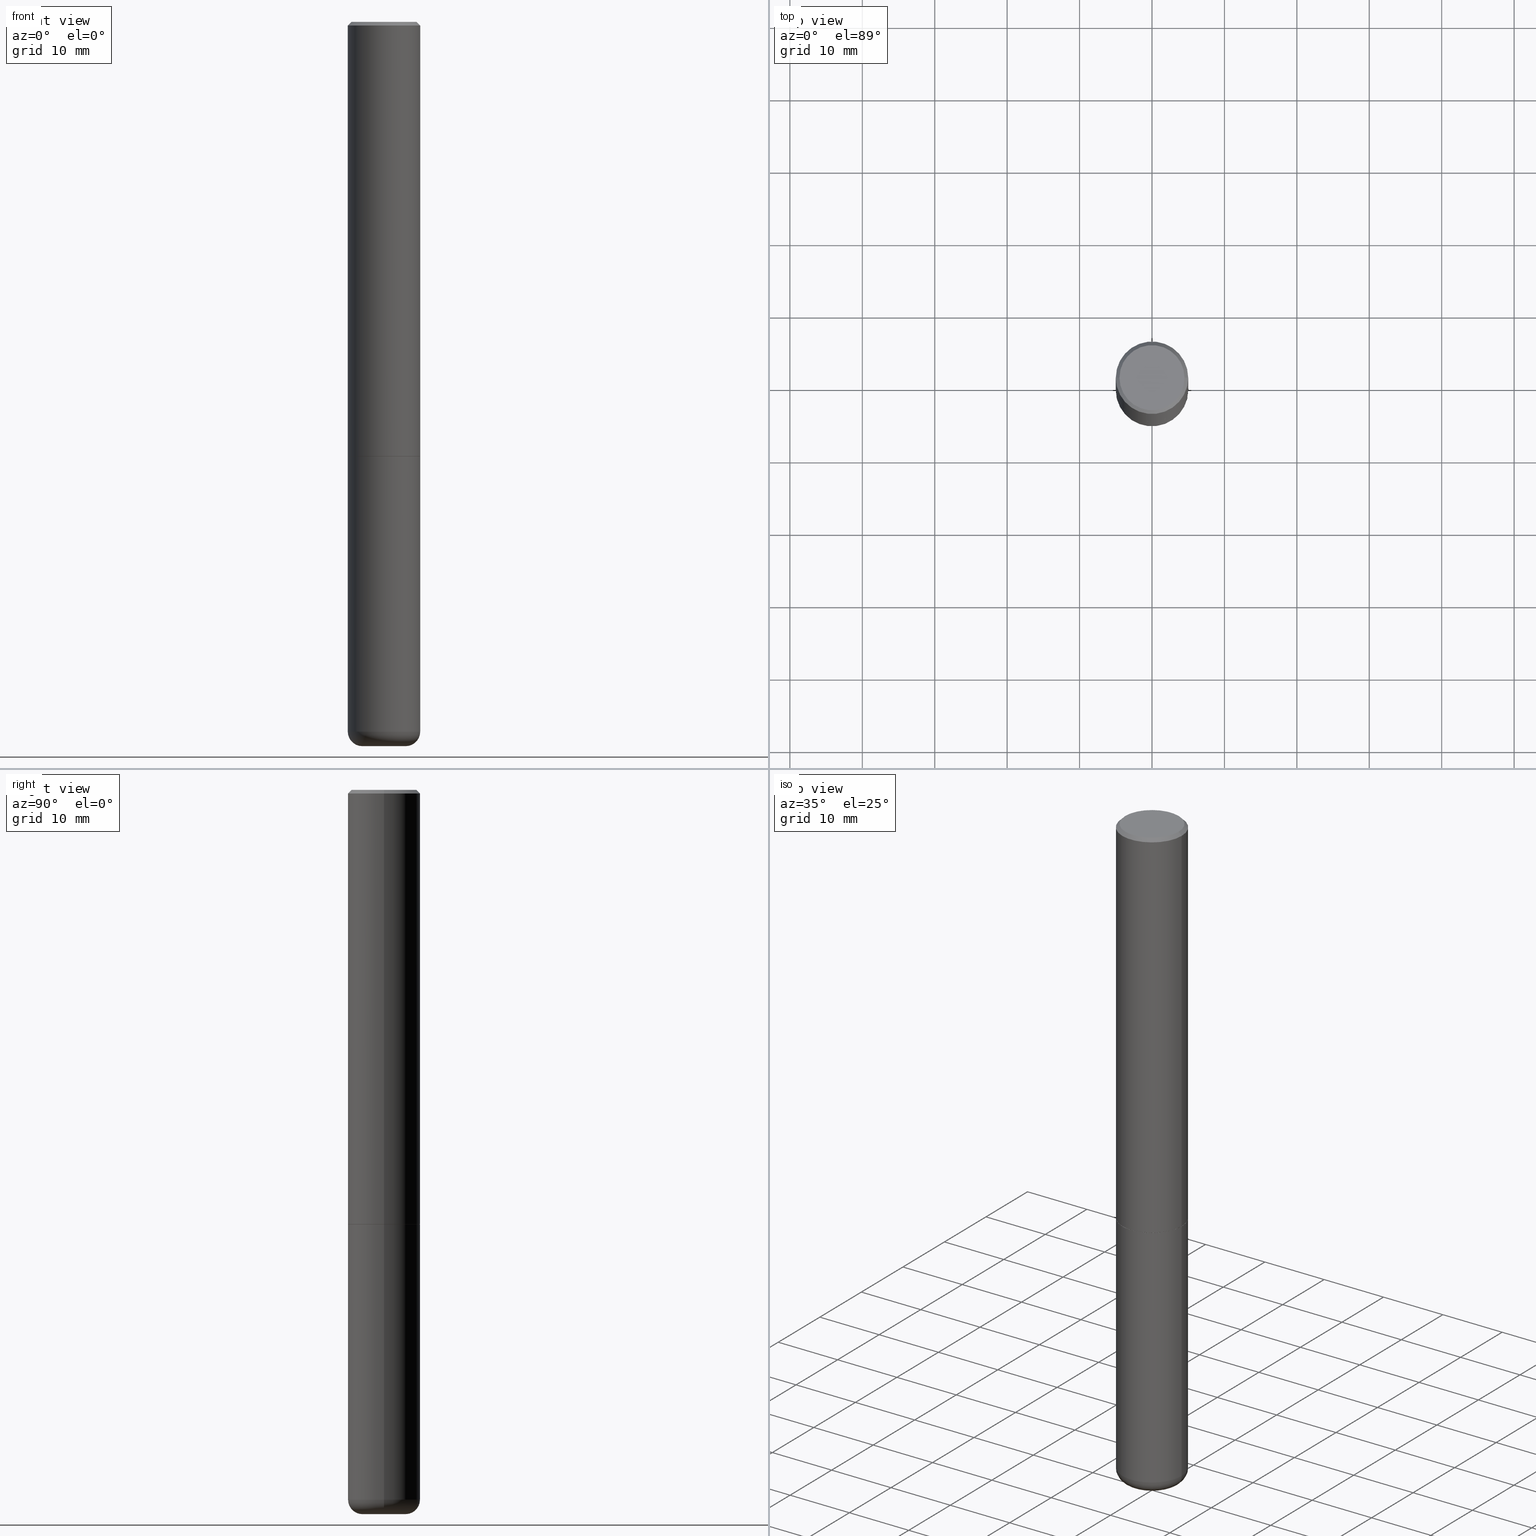
[diagram: canonical four-view strip — front | top / right | iso, engineering-drawing reading convention]
A machine part, canonical four-view strip (front | top / right | iso — engineering-drawing reading convention). The complete STEP part file that produces these views, byte-faithful:
ISO-10303-21;
HEADER;
FILE_DESCRIPTION (( 'STEP AP203' ),
    '1' );
FILE_NAME ('44861.STEP',
    '2024-03-04T11:19:58',
    ( '' ),
    ( '' ),
    'SwSTEP 2.0',
    'SolidWorks 2023',
    '' );
FILE_SCHEMA (( 'CONFIG_CONTROL_DESIGN' ));
ENDSEC;

DATA;
#1 = VERTEX_POINT ( 'NONE', #211 ) ;
#2 = DIRECTION ( 'NONE',  ( 1.000000000000000000, -6.982962677686269077E-15, 4.883557194083113462E-29 ) ) ;
#3 = CARTESIAN_POINT ( 'NONE',  ( 0.000000000000000000, 0.000000000000000000, 0.000000000000000000 ) ) ;
#4 = EDGE_CURVE ( 'NONE', #1, #239, #13, .T. ) ;
#5 = AXIS2_PLACEMENT_3D ( 'NONE', #359, #226, #255 ) ;
#6 = CARTESIAN_POINT ( 'NONE',  ( 0.1968500000000000250, -1.374596203102541608E-15, 9.598753983154300858E-30 ) ) ;
#7 = DATE_TIME_ROLE ( 'creation_date' ) ;
#8 = CARTESIAN_POINT ( 'NONE',  ( 4.890937612370283668E-31, -6.982962677686305168E-17, -0.02000000000000004205 ) ) ;
#9 = ADVANCED_FACE ( 'NONE', ( #273 ), #253, .T. ) ;
#10 = CARTESIAN_POINT ( 'NONE',  ( 4.890937612370283668E-31, -6.982962677686305168E-17, -0.02000000000000004205 ) ) ;
#11 = EDGE_LOOP ( 'NONE', ( #243, #49, #86, #168 ) ) ;
#12 = DIRECTION ( 'NONE',  ( 7.105427357601001859E-15, 1.000000000000000000, -3.491481338843145583E-15 ) ) ;
#13 = CIRCLE ( 'NONE', #235, 0.1181500000000000189 ) ;
#14 = ADVANCED_FACE ( 'NONE', ( #66 ), #151, .T. ) ;
#15 = PERSON_AND_ORGANIZATION ( #314, #390 ) ;
#16 = CARTESIAN_POINT ( 'NONE',  ( -0.1958499999999999963, -6.850680816280899656E-15, -2.362200000000000077 ) ) ;
#17 = PERSON_AND_ORGANIZATION_ROLE ( 'creator' ) ;
#18 = DIRECTION ( 'NONE',  ( -2.445468806185136597E-29, 3.491481338843145583E-15, 1.000000000000000000 ) ) ;
#19 = PERSON_AND_ORGANIZATION ( #314, #390 ) ;
#20 = EDGE_CURVE ( 'NONE', #285, #72, #378, .T. ) ;
#21 = DIRECTION ( 'NONE',  ( 1.000000000000000000, -6.982962677686265922E-15, 4.876176775795935793E-29 ) ) ;
#22 = CARTESIAN_POINT ( 'NONE',  ( 9.435352294904112142E-29, -1.347118244965850850E-14, -3.858300000000000285 ) ) ;
#23 = EDGE_CURVE ( 'NONE', #159, #183, #305, .T. ) ;
#24 = ORIENTED_EDGE ( 'NONE', *, *, #90, .F. ) ;
#25 = CARTESIAN_POINT ( 'NONE',  ( 0.000000000000000000, 0.000000000000000000, 0.000000000000000000 ) ) ;
#26 = EDGE_CURVE ( 'NONE', #407, #260, #389, .T. ) ;
#27 = AXIS2_PLACEMENT_3D ( 'NONE', #3, #36, #158 ) ;
#28 = LINE ( 'NONE', #152, #395 ) ;
#29 = CARTESIAN_POINT ( 'NONE',  ( -0.1968500000000000250, -9.460676458793135485E-15, -2.362200000000000077 ) ) ;
#30 = CYLINDRICAL_SURFACE ( 'NONE', #171, 0.1968500000000001360 ) ;
#31 = CYLINDRICAL_SURFACE ( 'NONE', #27, 0.1968500000000000250 ) ;
#32 = ORIENTED_EDGE ( 'NONE', *, *, #20, .T. ) ;
#33 = EDGE_CURVE ( 'NONE', #72, #94, #347, .T. ) ;
#34 = VECTOR ( 'NONE', #298, 39.37007874015748143 ) ;
#35 = ORIENTED_EDGE ( 'NONE', *, *, #182, .T. ) ;
#36 = DIRECTION ( 'NONE',  ( -2.445468806185136597E-29, 3.491481338843145583E-15, 1.000000000000000000 ) ) ;
#37 = ORIENTED_EDGE ( 'NONE', *, *, #23, .T. ) ;
#38 = ORIENTED_EDGE ( 'NONE', *, *, #139, .F. ) ;
#39 = ORIENTED_EDGE ( 'NONE', *, *, #267, .T. ) ;
#40 = ORIENTED_EDGE ( 'NONE', *, *, #161, .T. ) ;
#41 = VECTOR ( 'NONE', #97, 39.37007874015748143 ) ;
#42 = APPROVAL_PERSON_ORGANIZATION ( #15, #62, #295 ) ;
#43 = ORIENTED_EDGE ( 'NONE', *, *, #299, .T. ) ;
#44 = FACE_OUTER_BOUND ( 'NONE', #221, .T. ) ;
#45 = EDGE_CURVE ( 'NONE', #239, #341, #165, .T. ) ;
#46 = VERTEX_POINT ( 'NONE', #246 ) ;
#47 = PERSON_AND_ORGANIZATION ( #314, #390 ) ;
#48 = PERSON_AND_ORGANIZATION ( #314, #390 ) ;
#49 = ORIENTED_EDGE ( 'NONE', *, *, #73, .T. ) ;
#50 = FACE_OUTER_BOUND ( 'NONE', #95, .T. ) ;
#51 = VECTOR ( 'NONE', #156, 39.37007874015748143 ) ;
#52 = CC_DESIGN_APPROVAL ( #220, ( #93 ) ) ;
#53 = APPROVAL_DATE_TIME ( #195, #220 ) ;
#54 = PERSON_AND_ORGANIZATION ( #314, #390 ) ;
#55 = CIRCLE ( 'NONE', #322, 0.1968500000000000250 ) ;
#56 = CARTESIAN_POINT ( 'NONE',  ( -0.1768500000000000905, 1.269851762937247647E-15, -6.402768735151492985E-17 ) ) ;
#57 = APPLICATION_PROTOCOL_DEFINITION ( 'international standard', 'config_control_design', 1994, #317 ) ;
#58 = ORIENTED_EDGE ( 'NONE', *, *, #287, .F. ) ;
#59 = CIRCLE ( 'NONE', #114, 0.07869999999999970075 ) ;
#60 = LOCAL_TIME ( 6, 19, 58.00000000000000000, #206 ) ;
#61 = CALENDAR_DATE ( 2024, 4, 3 ) ;
#62 = APPROVAL ( #259, 'UNSPECIFIED' ) ;
#63 = CARTESIAN_POINT ( 'NONE',  ( 9.627810689950881427E-29, -1.374596203102546184E-14, -3.936999999999999389 ) ) ;
#64 = ORIENTED_EDGE ( 'NONE', *, *, #73, .F. ) ;
#65 = DIRECTION ( 'NONE',  ( -2.445468806185136597E-29, 3.491481338843145583E-15, 1.000000000000000000 ) ) ;
#66 = FACE_OUTER_BOUND ( 'NONE', #325, .T. ) ;
#67 =( NAMED_UNIT ( * ) SI_UNIT ( $, .STERADIAN. ) SOLID_ANGLE_UNIT ( ) );
#68 = AXIS2_PLACEMENT_3D ( 'NONE', #315, #318, #348 ) ;
#69 = AXIS2_PLACEMENT_3D ( 'NONE', #361, #81, #339 ) ;
#70 = EDGE_LOOP ( 'NONE', ( #342, #155 ) ) ;
#71 = DIRECTION ( 'NONE',  ( 1.000000000000000000, -6.982962677686267499E-15, 0.000000000000000000 ) ) ;
#72 = VERTEX_POINT ( 'NONE', #386 ) ;
#73 = EDGE_CURVE ( 'NONE', #285, #407, #247, .T. ) ;
#74 = DIRECTION ( 'NONE',  ( -1.000000000000000000, 6.982962677686265922E-15, -4.876176775795935793E-29 ) ) ;
#75 = ORIENTED_EDGE ( 'NONE', *, *, #287, .T. ) ;
#76 = MANIFOLD_SOLID_BREP ( 'Body-Move/Copy2[1]', #187 ) ;
#77 = AXIS2_PLACEMENT_3D ( 'NONE', #170, #134, #398 ) ;
#78 = DIRECTION ( 'NONE',  ( -1.000000000000000000, 6.982962677686265922E-15, 0.000000000000000000 ) ) ;
#79 = ADVANCED_FACE ( 'NONE', ( #234 ), #372, .F. ) ;
#80 = FACE_OUTER_BOUND ( 'NONE', #214, .T. ) ;
#81 = DIRECTION ( 'NONE',  ( -2.445468806185136597E-29, 3.491481338843145583E-15, 1.000000000000000000 ) ) ;
#82 = AXIS2_PLACEMENT_3D ( 'NONE', #330, #394, #133 ) ;
#83 = CARTESIAN_POINT ( 'NONE',  ( 0.1968500000000000250, -1.420318657638189122E-15, -0.02000000000000004205 ) ) ;
#84 = CC_DESIGN_PERSON_AND_ORGANIZATION_ASSIGNMENT ( #169, #208, ( #301 ) ) ;
#85 = CIRCLE ( 'NONE', #313, 0.1968500000000002748 ) ;
#86 = ORIENTED_EDGE ( 'NONE', *, *, #207, .F. ) ;
#87 = EDGE_CURVE ( 'NONE', #183, #159, #120, .T. ) ;
#88 = CARTESIAN_POINT ( 'NONE',  ( 5.776686413970529753E-29, -8.247577218615279626E-15, -2.362200000000000077 ) ) ;
#89 = ORIENTED_EDGE ( 'NONE', *, *, #184, .T. ) ;
#90 = EDGE_CURVE ( 'NONE', #99, #162, #28, .T. ) ;
#91 = PLANE ( 'NONE',  #228 ) ;
#92 = AXIS2_PLACEMENT_3D ( 'NONE', #147, #227, #363 ) ;
#93 = PRODUCT_DEFINITION_FORMATION_WITH_SPECIFIED_SOURCE ( 'ANY', '', #186, .NOT_KNOWN. ) ;
#94 = VERTEX_POINT ( 'NONE', #377 ) ;
#95 = EDGE_LOOP ( 'NONE', ( #413, #37 ) ) ;
#96 = CARTESIAN_POINT ( 'NONE',  ( 5.776686413970529753E-29, -8.247577218615279626E-15, -2.362200000000000077 ) ) ;
#97 = DIRECTION ( 'NONE',  ( 0.7071067811866199593, -2.468850131083015945E-15, 0.7071067811864750752 ) ) ;
#98 = AXIS2_PLACEMENT_3D ( 'NONE', #380, #213, #2 ) ;
#99 = VERTEX_POINT ( 'NONE', #116 ) ;
#100 = CARTESIAN_POINT ( 'NONE',  ( -0.1958499999999999963, -6.855979270629122058E-15, -2.362200000000000077 ) ) ;
#101 = LINE ( 'NONE', #6, #126 ) ;
#102 = DIRECTION ( 'NONE',  ( -2.445468806185136597E-29, 3.491481338843145583E-15, 1.000000000000000000 ) ) ;
#103 = DIRECTION ( 'NONE',  ( -2.445468806185136597E-29, 3.491481338843145583E-15, 1.000000000000000000 ) ) ;
#104 = FACE_OUTER_BOUND ( 'NONE', #375, .T. ) ;
#105 = DIRECTION ( 'NONE',  ( -2.445468806185136597E-29, 3.491481338843145583E-15, 1.000000000000000000 ) ) ;
#106 = AXIS2_PLACEMENT_3D ( 'NONE', #414, #121, #244 ) ;
#107 = CIRCLE ( 'NONE', #371, 0.1958499999999999963 ) ;
#108 = APPROVAL_PERSON_ORGANIZATION ( #47, #220, #382 ) ;
#109 = COORDINATED_UNIVERSAL_TIME_OFFSET ( 5, 0, .BEHIND. ) ;
#110 = DIRECTION ( 'NONE',  ( -2.445468806185136597E-29, 3.491481338843145583E-15, 1.000000000000000000 ) ) ;
#111 = UNCERTAINTY_MEASURE_WITH_UNIT (LENGTH_MEASURE( 1.000000000000000082E-05 ), #417, 'distance_accuracy_value', 'NONE');
#112 = DATE_AND_TIME ( #337, #127 ) ;
#113 = APPLICATION_PROTOCOL_DEFINITION ( 'international standard', 'config_control_design', 1994, #306 ) ;
#114 = AXIS2_PLACEMENT_3D ( 'NONE', #190, #12, #202 ) ;
#115 = DIRECTION ( 'NONE',  ( -2.445468806185136877E-29, 3.491481338843145188E-15, 1.000000000000000000 ) ) ;
#116 = CARTESIAN_POINT ( 'NONE',  ( -0.1968499999999998307, -1.207247907431475308E-14, -3.858300000000000285 ) ) ;
#117 = APPROVAL_DATE_TIME ( #112, #176 ) ;
#118 = EDGE_LOOP ( 'NONE', ( #312, #237 ) ) ;
#119 = CARTESIAN_POINT ( 'NONE',  ( -0.1968500000000000250, 1.304766576325678705E-15, -0.02000000000000004205 ) ) ;
#120 = CIRCLE ( 'NONE', #365, 0.1768500000000000905 ) ;
#121 = DIRECTION ( 'NONE',  ( -2.445468806185136597E-29, 3.491481338843145583E-15, 1.000000000000000000 ) ) ;
#122 = APPROVAL_STATUS ( 'not_yet_approved' ) ;
#123 = DIRECTION ( 'NONE',  ( 1.000000000000000000, -6.982962677686271444E-15, 0.000000000000000000 ) ) ;
#124 = ADVANCED_FACE ( 'NONE', ( #238 ), #91, .F. ) ;
#125 = DIRECTION ( 'NONE',  ( -6.982962677686266711E-15, -1.000000000000000000, 3.491481338843145583E-15 ) ) ;
#126 = VECTOR ( 'NONE', #115, 39.37007874015748143 ) ;
#127 = LOCAL_TIME ( 6, 19, 58.00000000000000000, #374 ) ;
#128 = ORIENTED_EDGE ( 'NONE', *, *, #161, .F. ) ;
#129 = ORIENTED_EDGE ( 'NONE', *, *, #172, .F. ) ;
#130 = ORIENTED_EDGE ( 'NONE', *, *, #308, .F. ) ;
#131 = DIRECTION ( 'NONE',  ( 1.000000000000000000, -6.982962677686265922E-15, 0.000000000000000000 ) ) ;
#132 = TOROIDAL_SURFACE ( 'NONE', #216, 0.1181500000000000050, 0.07869999999999967299 ) ;
#133 = DIRECTION ( 'NONE',  ( 1.000000000000000000, -6.982962677686265922E-15, 0.000000000000000000 ) ) ;
#134 = DIRECTION ( 'NONE',  ( 2.438088387897960049E-29, -3.491481338843145188E-15, -1.000000000000000000 ) ) ;
#135 = ORIENTED_EDGE ( 'NONE', *, *, #299, .F. ) ;
#136 = CARTESIAN_POINT ( 'NONE',  ( 5.774240945164344150E-29, -8.244085737276435042E-15, -2.361199999999999743 ) ) ;
#137 = PERSON_AND_ORGANIZATION ( #314, #390 ) ;
#138 = DIRECTION ( 'NONE',  ( 1.000000000000000000, -6.982962677686267499E-15, 0.000000000000000000 ) ) ;
#139 = EDGE_CURVE ( 'NONE', #341, #99, #268, .T. ) ;
#140 = LINE ( 'NONE', #119, #51 ) ;
#141 = PERSON_AND_ORGANIZATION_ROLE ( 'classification_officer' ) ;
#142 = DESIGN_CONTEXT ( 'detailed design', #306, 'design' ) ;
#143 = CIRCLE ( 'NONE', #241, 0.1968500000000002748 ) ;
#144 = APPROVAL_PERSON_ORGANIZATION ( #54, #176, #178 ) ;
#145 = CC_DESIGN_PERSON_AND_ORGANIZATION_ASSIGNMENT ( #137, #258, ( #93 ) ) ;
#146 = ORIENTED_EDGE ( 'NONE', *, *, #308, .T. ) ;
#147 = CARTESIAN_POINT ( 'NONE',  ( 9.435352294904112142E-29, -1.347118244965850850E-14, -3.858300000000000285 ) ) ;
#148 = MECHANICAL_CONTEXT ( 'NONE', #317, 'mechanical' ) ;
#149 = DIRECTION ( 'NONE',  ( -1.000000000000000000, 6.982962677686265922E-15, -4.876176775795935793E-29 ) ) ;
#150 = ORIENTED_EDGE ( 'NONE', *, *, #172, .T. ) ;
#151 = TOROIDAL_SURFACE ( 'NONE', #98, 0.1181500000000000050, 0.07869999999999967299 ) ;
#152 = CARTESIAN_POINT ( 'NONE',  ( -0.1968500000000000250, 1.398703375343757393E-15, -9.682923725166783677E-30 ) ) ;
#153 = VERTEX_POINT ( 'NONE', #83 ) ;
#154 = CC_DESIGN_PERSON_AND_ORGANIZATION_ASSIGNMENT ( #48, #404, ( #186 ) ) ;
#155 = ORIENTED_EDGE ( 'NONE', *, *, #349, .T. ) ;
#156 = DIRECTION ( 'NONE',  ( -0.7071067811865465735, 2.468850131082246805E-15, -0.7071067811865484609 ) ) ;
#157 = DIRECTION ( 'NONE',  ( 1.000000000000000000, -6.982962677686265922E-15, 0.000000000000000000 ) ) ;
#158 = DIRECTION ( 'NONE',  ( 1.000000000000000000, -6.982962677686265922E-15, 4.876176775795935793E-29 ) ) ;
#159 = VERTEX_POINT ( 'NONE', #198 ) ;
#160 = DIRECTION ( 'NONE',  ( -2.445468806185136597E-29, 3.491481338843145583E-15, 1.000000000000000000 ) ) ;
#161 = EDGE_CURVE ( 'NONE', #183, #260, #140, .T. ) ;
#162 = VERTEX_POINT ( 'NONE', #29 ) ;
#163 = ADVANCED_FACE ( 'NONE', ( #385 ), #418, .T. ) ;
#164 = EDGE_LOOP ( 'NONE', ( #135, #340 ) ) ;
#165 = CIRCLE ( 'NONE', #296, 0.07869999999999970075 ) ;
#166 = CARTESIAN_POINT ( 'NONE',  ( 9.435352294904112142E-29, -1.347118244965850850E-14, -3.858300000000000285 ) ) ;
#167 = ORIENTED_EDGE ( 'NONE', *, *, #45, .T. ) ;
#168 = ORIENTED_EDGE ( 'NONE', *, *, #33, .F. ) ;
#169 = PERSON_AND_ORGANIZATION ( #314, #390 ) ;
#170 = CARTESIAN_POINT ( 'NONE',  ( 1.234936949548816787E-15, 0.1768500000000000905, -6.494823184501636643E-16 ) ) ;
#171 = AXIS2_PLACEMENT_3D ( 'NONE', #25, #175, #191 ) ;
#172 = EDGE_CURVE ( 'NONE', #99, #341, #272, .T. ) ;
#173 = CARTESIAN_POINT ( 'NONE',  ( 4.890937612370283668E-31, -6.982962677686305168E-17, -0.02000000000000004205 ) ) ;
#174 = APPROVAL_STATUS ( 'not_yet_approved' ) ;
#175 = DIRECTION ( 'NONE',  ( -2.445468806185136597E-29, 3.491481338843145583E-15, 1.000000000000000000 ) ) ;
#176 = APPROVAL ( #174, 'UNSPECIFIED' ) ;
#177 = VECTOR ( 'NONE', #275, 39.37007874015748143 ) ;
#178 = APPROVAL_ROLE ( '' ) ;
#179 = CARTESIAN_POINT ( 'NONE',  ( 1.565777121502829671E-45, -2.235514755570671047E-31, -6.402768735150616610E-17 ) ) ;
#180 = CIRCLE ( 'NONE', #5, 0.1968500000000000250 ) ;
#181 = LOCAL_TIME ( 6, 19, 58.00000000000000000, #364 ) ;
#182 = EDGE_CURVE ( 'NONE', #1, #99, #59, .T. ) ;
#183 = VERTEX_POINT ( 'NONE', #56 ) ;
#184 = EDGE_CURVE ( 'NONE', #153, #260, #55, .T. ) ;
#185 = DIRECTION ( 'NONE',  ( 1.000000000000000000, -6.982962677686262766E-15, 0.000000000000000000 ) ) ;
#186 = PRODUCT ( '44861', '44861', '', ( #148 ) ) ;
#187 = CLOSED_SHELL ( 'NONE', ( #276, #14, #79, #411, #331, #163 ) ) ;
#188 = AXIS2_PLACEMENT_3D ( 'NONE', #373, #205, #336 ) ;
#189 = CARTESIAN_POINT ( 'NONE',  ( -0.1968500000000001360, 1.398703375343758182E-15, -9.682923725166790684E-30 ) ) ;
#190 = CARTESIAN_POINT ( 'NONE',  ( -0.1181500000000000050, -1.263167620735795029E-14, -3.858300000000000285 ) ) ;
#191 = DIRECTION ( 'NONE',  ( 1.000000000000000000, -6.982962677686266711E-15, 4.876176775795935793E-29 ) ) ;
#192 = AXIS2_PLACEMENT_3D ( 'NONE', #333, #18, #326 ) ;
#193 = DIRECTION ( 'NONE',  ( -2.445468806185136597E-29, 3.491481338843145583E-15, 1.000000000000000000 ) ) ;
#194 = CC_DESIGN_DATE_AND_TIME_ASSIGNMENT ( #310, #7, ( #301 ) ) ;
#195 = DATE_AND_TIME ( #360, #181 ) ;
#196 = AXIS2_PLACEMENT_3D ( 'NONE', #10, #224, #406 ) ;
#197 = AXIS2_PLACEMENT_3D ( 'NONE', #368, #105, #138 ) ;
#198 = CARTESIAN_POINT ( 'NONE',  ( 0.1768500000000000905, -1.316798864272042535E-15, -6.402768735149724211E-17 ) ) ;
#199 = CARTESIAN_POINT ( 'NONE',  ( 0.000000000000000000, 0.000000000000000000, 0.000000000000000000 ) ) ;
#200 = LINE ( 'NONE', #396, #34 ) ;
#201 = MANIFOLD_SOLID_BREP ( 'Body-Move/Copy2[2]', #370 ) ;
#202 = DIRECTION ( 'NONE',  ( -1.000000000000000000, 7.105427357600995548E-15, 0.000000000000000000 ) ) ;
#203 = CIRCLE ( 'NONE', #283, 0.1968500000000000250 ) ;
#204 = DIRECTION ( 'NONE',  ( 2.438088387897960049E-29, -3.491481338843145188E-15, -1.000000000000000000 ) ) ;
#205 = DIRECTION ( 'NONE',  ( 0.000000000000000000, 0.000000000000000000, 1.000000000000000000 ) ) ;
#206 = COORDINATED_UNIVERSAL_TIME_OFFSET ( 5, 0, .BEHIND. ) ;
#207 = EDGE_CURVE ( 'NONE', #94, #407, #143, .T. ) ;
#208 = PERSON_AND_ORGANIZATION_ROLE ( 'creator' ) ;
#209 = AXIS2_PLACEMENT_3D ( 'NONE', #353, #351, #74 ) ;
#210 =( GEOMETRIC_REPRESENTATION_CONTEXT ( 3 ) GLOBAL_UNCERTAINTY_ASSIGNED_CONTEXT ( ( #111 ) ) GLOBAL_UNIT_ASSIGNED_CONTEXT ( ( #417, #343, #67 ) ) REPRESENTATION_CONTEXT ( 'NONE', 'WORKASPACE' ) );
#211 = CARTESIAN_POINT ( 'NONE',  ( -0.1181500000000000189, -1.248946743151982756E-14, -3.936999999999999389 ) ) ;
#212 = ADVANCED_FACE ( 'NONE', ( #44 ), #346, .T. ) ;
#213 = DIRECTION ( 'NONE',  ( -2.445468806185136597E-29, 3.491481338843145583E-15, 1.000000000000000000 ) ) ;
#214 = EDGE_LOOP ( 'NONE', ( #324, #388, #167, #129 ) ) ;
#215 = VECTOR ( 'NONE', #300, 39.37007874015748143 ) ;
#216 = AXIS2_PLACEMENT_3D ( 'NONE', #22, #338, #265 ) ;
#217 = CARTESIAN_POINT ( 'NONE',  ( 5.776686413970529753E-29, -8.247577218615279626E-15, -2.362200000000000077 ) ) ;
#218 = FACE_OUTER_BOUND ( 'NONE', #252, .T. ) ;
#219 = ORIENTED_EDGE ( 'NONE', *, *, #207, .T. ) ;
#220 = APPROVAL ( #122, 'UNSPECIFIED' ) ;
#221 = EDGE_LOOP ( 'NONE', ( #279, #350, #40, #146 ) ) ;
#222 = AXIS2_PLACEMENT_3D ( 'NONE', #96, #160, #185 ) ;
#223 = ORIENTED_EDGE ( 'NONE', *, *, #261, .T. ) ;
#224 = DIRECTION ( 'NONE',  ( 2.445468806185136597E-29, -3.491481338843145583E-15, -1.000000000000000000 ) ) ;
#225 = DIRECTION ( 'NONE',  ( 1.000000000000000000, -6.982962677686265922E-15, 4.876176775795935793E-29 ) ) ;
#226 = DIRECTION ( 'NONE',  ( -2.445468806185136597E-29, 3.491481338843145583E-15, 1.000000000000000000 ) ) ;
#227 = DIRECTION ( 'NONE',  ( -2.445468806185136597E-29, 3.491481338843145583E-15, 1.000000000000000000 ) ) ;
#228 = AXIS2_PLACEMENT_3D ( 'NONE', #245, #231, #21 ) ;
#229 = CALENDAR_DATE ( 2024, 4, 3 ) ;
#230 = COORDINATED_UNIVERSAL_TIME_OFFSET ( 5, 0, .BEHIND. ) ;
#231 = DIRECTION ( 'NONE',  ( -2.438088387897960049E-29, 3.491481338843145188E-15, 1.000000000000000000 ) ) ;
#232 = DATE_AND_TIME ( #367, #284 ) ;
#233 = ORIENTED_EDGE ( 'NONE', *, *, #90, .T. ) ;
#234 = FACE_OUTER_BOUND ( 'NONE', #70, .T. ) ;
#235 = AXIS2_PLACEMENT_3D ( 'NONE', #63, #311, #157 ) ;
#236 = ADVANCED_FACE ( 'NONE', ( #50 ), #254, .F. ) ;
#237 = ORIENTED_EDGE ( 'NONE', *, *, #20, .F. ) ;
#238 = FACE_OUTER_BOUND ( 'NONE', #118, .T. ) ;
#239 = VERTEX_POINT ( 'NONE', #362 ) ;
#240 = DIRECTION ( 'NONE',  ( 1.000000000000000000, -6.982962677686267499E-15, 0.000000000000000000 ) ) ;
#241 = AXIS2_PLACEMENT_3D ( 'NONE', #263, #288, #328 ) ;
#242 = ADVANCED_FACE ( 'NONE', ( #401 ), #30, .T. ) ;
#243 = ORIENTED_EDGE ( 'NONE', *, *, #345, .T. ) ;
#244 = DIRECTION ( 'NONE',  ( 1.000000000000000000, -6.982962677686262766E-15, 0.000000000000000000 ) ) ;
#245 = CARTESIAN_POINT ( 'NONE',  ( 5.776686413970529753E-29, -8.247577218615279626E-15, -2.362200000000000077 ) ) ;
#246 = CARTESIAN_POINT ( 'NONE',  ( 0.1968500000000000250, -9.622173421717821235E-15, -2.362200000000000077 ) ) ;
#247 = LINE ( 'NONE', #100, #403 ) ;
#248 = CIRCLE ( 'NONE', #82, 0.1181500000000000189 ) ;
#249 = ORIENTED_EDGE ( 'NONE', *, *, #184, .F. ) ;
#250 = ADVANCED_FACE ( 'NONE', ( #218 ), #409, .T. ) ;
#251 = CARTESIAN_POINT ( 'NONE',  ( 0.1968500000000000250, -1.420318657638189122E-15, -0.02000000000000004205 ) ) ;
#252 = EDGE_LOOP ( 'NONE', ( #320, #39, #89, #128 ) ) ;
#253 = CONICAL_SURFACE ( 'NONE', #106, 0.1958499999999999963, 0.7853981633975507526 ) ;
#254 = PLANE ( 'NONE',  #77 ) ;
#255 = DIRECTION ( 'NONE',  ( 1.000000000000000000, -6.982962677686265922E-15, 0.000000000000000000 ) ) ;
#256 = EDGE_LOOP ( 'NONE', ( #219, #274, #249, #58 ) ) ;
#257 = DIRECTION ( 'NONE',  ( 1.000000000000000000, -6.982962677686264344E-15, 0.000000000000000000 ) ) ;
#258 = PERSON_AND_ORGANIZATION_ROLE ( 'design_supplier' ) ;
#259 = APPROVAL_STATUS ( 'not_yet_approved' ) ;
#260 = VERTEX_POINT ( 'NONE', #329 ) ;
#261 = EDGE_CURVE ( 'NONE', #341, #46, #101, .T. ) ;
#262 = AXIS2_PLACEMENT_3D ( 'NONE', #88, #204, #149 ) ;
#263 = CARTESIAN_POINT ( 'NONE',  ( 5.774240945164344150E-29, -8.244085737276435042E-15, -2.361199999999999743 ) ) ;
#264 = CC_DESIGN_APPROVAL ( #62, ( #301 ) ) ;
#265 = DIRECTION ( 'NONE',  ( 1.000000000000000000, -6.982962677686269077E-15, 4.883557194083113462E-29 ) ) ;
#266 = ORIENTED_EDGE ( 'NONE', *, *, #261, .F. ) ;
#267 = EDGE_CURVE ( 'NONE', #159, #153, #271, .T. ) ;
#268 = CIRCLE ( 'NONE', #92, 0.1968500000000000250 ) ;
#269 = CC_DESIGN_SECURITY_CLASSIFICATION ( #323, ( #93 ) ) ;
#270 = DIRECTION ( 'NONE',  ( 1.000000000000000000, -6.982962677686267499E-15, 4.874860244052827406E-29 ) ) ;
#271 = LINE ( 'NONE', #251, #215 ) ;
#272 = CIRCLE ( 'NONE', #291, 0.1968500000000000250 ) ;
#273 = FACE_OUTER_BOUND ( 'NONE', #11, .T. ) ;
#274 = ORIENTED_EDGE ( 'NONE', *, *, #26, .T. ) ;
#275 = DIRECTION ( 'NONE',  ( -2.445468806185136877E-29, 3.491481338843145188E-15, 1.000000000000000000 ) ) ;
#276 = ADVANCED_FACE ( 'NONE', ( #408 ), #286, .T. ) ;
#277 = EDGE_LOOP ( 'NONE', ( #282, #233, #302, #266 ) ) ;
#278 = ADVANCED_BREP_SHAPE_REPRESENTATION ( '44861', ( #76, #201, #188 ), #210 ) ;
#279 = ORIENTED_EDGE ( 'NONE', *, *, #267, .F. ) ;
#280 = CARTESIAN_POINT ( 'NONE',  ( 0.1958499999999999963, -9.615190459040133643E-15, -2.362200000000000077 ) ) ;
#281 = EDGE_CURVE ( 'NONE', #46, #162, #203, .T. ) ;
#282 = ORIENTED_EDGE ( 'NONE', *, *, #139, .T. ) ;
#283 = AXIS2_PLACEMENT_3D ( 'NONE', #217, #65, #240 ) ;
#284 = LOCAL_TIME ( 6, 19, 58.00000000000000000, #230 ) ;
#285 = VERTEX_POINT ( 'NONE', #16 ) ;
#286 = CYLINDRICAL_SURFACE ( 'NONE', #354, 0.1968500000000000250 ) ;
#287 = EDGE_CURVE ( 'NONE', #94, #153, #200, .T. ) ;
#288 = DIRECTION ( 'NONE',  ( -2.445468806185136597E-29, 3.491481338843145583E-15, 1.000000000000000000 ) ) ;
#289 = EDGE_LOOP ( 'NONE', ( #24, #150, #223, #415 ) ) ;
#290 = EDGE_LOOP ( 'NONE', ( #344, #383, #75, #130 ) ) ;
#291 = AXIS2_PLACEMENT_3D ( 'NONE', #166, #193, #71 ) ;
#292 = PERSON_AND_ORGANIZATION ( #314, #390 ) ;
#293 = DIRECTION ( 'NONE',  ( 1.000000000000000000, -6.982962677686262766E-15, 0.000000000000000000 ) ) ;
#294 = SECURITY_CLASSIFICATION_LEVEL ( 'unclassified' ) ;
#295 = APPROVAL_ROLE ( '' ) ;
#296 = AXIS2_PLACEMENT_3D ( 'NONE', #416, #125, #123 ) ;
#297 = CONICAL_SURFACE ( 'NONE', #69, 0.1958499999999999963, 0.7853981633975507526 ) ;
#298 = DIRECTION ( 'NONE',  ( -2.445468806185136877E-29, 3.491481338843145188E-15, 1.000000000000000000 ) ) ;
#299 = EDGE_CURVE ( 'NONE', #239, #1, #248, .T. ) ;
#300 = DIRECTION ( 'NONE',  ( 0.7071067811865465735, -7.319954787623252890E-15, -0.7071067811865484609 ) ) ;
#301 = PRODUCT_DEFINITION ( 'UNKNOWN', '', #93, #142 ) ;
#302 = ORIENTED_EDGE ( 'NONE', *, *, #281, .F. ) ;
#303 = PRODUCT_DEFINITION_SHAPE ( 'NONE', 'NONE',  #301 ) ;
#304 = DIRECTION ( 'NONE',  ( -2.445468806185136597E-29, 3.491481338843145583E-15, 1.000000000000000000 ) ) ;
#305 = CIRCLE ( 'NONE', #68, 0.1768500000000000905 ) ;
#306 = APPLICATION_CONTEXT ( 'configuration controlled 3d designs of mechanical parts and assemblies' ) ;
#307 = SHAPE_DEFINITION_REPRESENTATION ( #303, #278 ) ;
#308 = EDGE_CURVE ( 'NONE', #260, #153, #180, .T. ) ;
#309 = FACE_OUTER_BOUND ( 'NONE', #289, .T. ) ;
#310 = DATE_AND_TIME ( #61, #60 ) ;
#311 = DIRECTION ( 'NONE',  ( -2.445468806185136597E-29, 3.491481338843145583E-15, 1.000000000000000000 ) ) ;
#312 = ORIENTED_EDGE ( 'NONE', *, *, #345, .F. ) ;
#313 = AXIS2_PLACEMENT_3D ( 'NONE', #136, #103, #257 ) ;
#314 = PERSON ( 'UNSPECIFIED', 'UNSPECIFIED', 'UNSPECIFIED', ('UNSPECIFIED'), ('UNSPECIFIED'), ('UNSPECIFIED') ) ;
#315 = CARTESIAN_POINT ( 'NONE',  ( 1.565777121502829671E-45, -2.235514755570671047E-31, -6.402768735150616610E-17 ) ) ;
#316 = LOCAL_TIME ( 6, 19, 58.00000000000000000, #109 ) ;
#317 = APPLICATION_CONTEXT ( 'configuration controlled 3d designs of mechanical parts and assemblies' ) ;
#318 = DIRECTION ( 'NONE',  ( -2.445468806185136597E-29, 3.491481338843145583E-15, 1.000000000000000000 ) ) ;
#319 = EDGE_CURVE ( 'NONE', #407, #94, #85, .T. ) ;
#320 = ORIENTED_EDGE ( 'NONE', *, *, #23, .F. ) ;
#321 = ORIENTED_EDGE ( 'NONE', *, *, #319, .F. ) ;
#322 = AXIS2_PLACEMENT_3D ( 'NONE', #173, #335, #131 ) ;
#323 = SECURITY_CLASSIFICATION ( '', '', #294 ) ;
#324 = ORIENTED_EDGE ( 'NONE', *, *, #182, .F. ) ;
#325 = EDGE_LOOP ( 'NONE', ( #43, #35, #38, #356 ) ) ;
#326 = DIRECTION ( 'NONE',  ( 1.000000000000000000, -6.982962677686266711E-15, 4.876176775795935793E-29 ) ) ;
#327 = APPROVAL_DATE_TIME ( #232, #62 ) ;
#328 = DIRECTION ( 'NONE',  ( 1.000000000000000000, -6.982962677686264344E-15, 0.000000000000000000 ) ) ;
#329 = CARTESIAN_POINT ( 'NONE',  ( -0.1968500000000000250, 1.304766576325678705E-15, -0.02000000000000004205 ) ) ;
#330 = CARTESIAN_POINT ( 'NONE',  ( 9.627810689950881427E-29, -1.374596203102546184E-14, -3.936999999999999389 ) ) ;
#331 = ADVANCED_FACE ( 'NONE', ( #80 ), #132, .T. ) ;
#332 = DATE_TIME_ROLE ( 'classification_date' ) ;
#333 = CARTESIAN_POINT ( 'NONE',  ( 0.000000000000000000, 0.000000000000000000, 0.000000000000000000 ) ) ;
#334 = CC_DESIGN_APPROVAL ( #176, ( #323 ) ) ;
#335 = DIRECTION ( 'NONE',  ( -2.445468806185136597E-29, 3.491481338843145583E-15, 1.000000000000000000 ) ) ;
#336 = DIRECTION ( 'NONE',  ( 1.000000000000000000, 0.000000000000000000, 0.000000000000000000 ) ) ;
#337 = CALENDAR_DATE ( 2024, 4, 3 ) ;
#338 = DIRECTION ( 'NONE',  ( -2.445468806185136597E-29, 3.491481338843145583E-15, 1.000000000000000000 ) ) ;
#339 = DIRECTION ( 'NONE',  ( 1.000000000000000000, -6.982962677686262766E-15, 0.000000000000000000 ) ) ;
#340 = ORIENTED_EDGE ( 'NONE', *, *, #4, .F. ) ;
#341 = VERTEX_POINT ( 'NONE', #402 ) ;
#342 = ORIENTED_EDGE ( 'NONE', *, *, #281, .T. ) ;
#343 =( NAMED_UNIT ( * ) PLANE_ANGLE_UNIT ( ) SI_UNIT ( $, .RADIAN. ) );
#344 = ORIENTED_EDGE ( 'NONE', *, *, #26, .F. ) ;
#345 = EDGE_CURVE ( 'NONE', #72, #285, #107, .T. ) ;
#346 = CONICAL_SURFACE ( 'NONE', #387, 0.1968500000000000250, 0.7853981633974469467 ) ;
#347 = LINE ( 'NONE', #280, #41 ) ;
#348 = DIRECTION ( 'NONE',  ( 1.000000000000000000, -6.982962677686267499E-15, 4.874860244052827406E-29 ) ) ;
#349 = EDGE_CURVE ( 'NONE', #162, #46, #355, .T. ) ;
#350 = ORIENTED_EDGE ( 'NONE', *, *, #87, .F. ) ;
#351 = DIRECTION ( 'NONE',  ( 2.438088387897960049E-29, -3.491481338843145188E-15, -1.000000000000000000 ) ) ;
#352 = CC_DESIGN_PERSON_AND_ORGANIZATION_ASSIGNMENT ( #19, #141, ( #323 ) ) ;
#353 = CARTESIAN_POINT ( 'NONE',  ( 2.234110016788299055E-28, 4.460192096873334835E-15, -3.937000000000000277 ) ) ;
#354 = AXIS2_PLACEMENT_3D ( 'NONE', #199, #102, #225 ) ;
#355 = CIRCLE ( 'NONE', #197, 0.1968500000000000250 ) ;
#356 = ORIENTED_EDGE ( 'NONE', *, *, #45, .F. ) ;
#357 = DIRECTION ( 'NONE',  ( 2.445468806185136597E-29, -3.491481338843145583E-15, -1.000000000000000000 ) ) ;
#358 = FACE_OUTER_BOUND ( 'NONE', #290, .T. ) ;
#359 = CARTESIAN_POINT ( 'NONE',  ( 4.890937612370283668E-31, -6.982962677686305168E-17, -0.02000000000000004205 ) ) ;
#360 = CALENDAR_DATE ( 2024, 4, 3 ) ;
#361 = CARTESIAN_POINT ( 'NONE',  ( 5.776686413970529753E-29, -8.247577218615279626E-15, -2.362200000000000077 ) ) ;
#362 = CARTESIAN_POINT ( 'NONE',  ( 0.1181500000000000189, -1.457099907139409361E-14, -3.936999999999999389 ) ) ;
#363 = DIRECTION ( 'NONE',  ( 1.000000000000000000, -6.982962677686267499E-15, 0.000000000000000000 ) ) ;
#364 = COORDINATED_UNIVERSAL_TIME_OFFSET ( 5, 0, .BEHIND. ) ;
#365 = AXIS2_PLACEMENT_3D ( 'NONE', #179, #304, #270 ) ;
#366 = DATE_AND_TIME ( #229, #316 ) ;
#367 = CALENDAR_DATE ( 2024, 4, 3 ) ;
#368 = CARTESIAN_POINT ( 'NONE',  ( 5.776686413970529753E-29, -8.247577218615279626E-15, -2.362200000000000077 ) ) ;
#369 = CC_DESIGN_PERSON_AND_ORGANIZATION_ASSIGNMENT ( #292, #17, ( #93 ) ) ;
#370 = CLOSED_SHELL ( 'NONE', ( #9, #242, #250, #212, #379, #391, #124, #236 ) ) ;
#371 = AXIS2_PLACEMENT_3D ( 'NONE', #405, #110, #293 ) ;
#372 = PLANE ( 'NONE',  #262 ) ;
#373 = CARTESIAN_POINT ( 'NONE',  ( 0.000000000000000000, 0.000000000000000000, 0.000000000000000000 ) ) ;
#374 = COORDINATED_UNIVERSAL_TIME_OFFSET ( 5, 0, .BEHIND. ) ;
#375 = EDGE_LOOP ( 'NONE', ( #64, #32, #392, #321 ) ) ;
#376 = CARTESIAN_POINT ( 'NONE',  ( -0.1968500000000002748, -2.758254306682887043E-15, -2.361199999999999743 ) ) ;
#377 = CARTESIAN_POINT ( 'NONE',  ( 0.1968500000000002748, -9.618681940378978228E-15, -2.361199999999999743 ) ) ;
#378 = CIRCLE ( 'NONE', #222, 0.1958499999999999963 ) ;
#379 = ADVANCED_FACE ( 'NONE', ( #358 ), #397, .T. ) ;
#380 = CARTESIAN_POINT ( 'NONE',  ( 9.435352294904112142E-29, -1.347118244965850850E-14, -3.858300000000000285 ) ) ;
#381 = LENGTH_MEASURE_WITH_UNIT ( LENGTH_MEASURE( 0.02539999999999999897 ), #393 );
#382 = APPROVAL_ROLE ( '' ) ;
#383 = ORIENTED_EDGE ( 'NONE', *, *, #319, .T. ) ;
#384 = PRODUCT_RELATED_PRODUCT_CATEGORY ( 'detail', '', ( #186 ) ) ;
#385 = FACE_OUTER_BOUND ( 'NONE', #164, .T. ) ;
#386 = CARTESIAN_POINT ( 'NONE',  ( 0.1958499999999999963, -9.615190459040133643E-15, -2.362200000000000077 ) ) ;
#387 = AXIS2_PLACEMENT_3D ( 'NONE', #8, #357, #78 ) ;
#388 = ORIENTED_EDGE ( 'NONE', *, *, #4, .T. ) ;
#389 = LINE ( 'NONE', #189, #177 ) ;
#390 = ORGANIZATION ( 'UNSPECIFIED', 'UNSPECIFIED', '' ) ;
#391 = ADVANCED_FACE ( 'NONE', ( #104 ), #297, .T. ) ;
#392 = ORIENTED_EDGE ( 'NONE', *, *, #33, .T. ) ;
#393 =( LENGTH_UNIT ( ) NAMED_UNIT ( * ) SI_UNIT ( $, .METRE. ) );
#394 = DIRECTION ( 'NONE',  ( -2.445468806185136597E-29, 3.491481338843145583E-15, 1.000000000000000000 ) ) ;
#395 = VECTOR ( 'NONE', #412, 39.37007874015748143 ) ;
#396 = CARTESIAN_POINT ( 'NONE',  ( 0.1968500000000001360, -1.374596203102542594E-15, 9.598753983154306463E-30 ) ) ;
#397 = CYLINDRICAL_SURFACE ( 'NONE', #192, 0.1968500000000001360 ) ;
#398 = DIRECTION ( 'NONE',  ( -1.000000000000000000, 6.982962677686265922E-15, -4.876176775795935793E-29 ) ) ;
#399 = CC_DESIGN_DATE_AND_TIME_ASSIGNMENT ( #366, #332, ( #323 ) ) ;
#400 = DIMENSIONAL_EXPONENTS ( 1.000000000000000000, 0.000000000000000000, 0.000000000000000000, 0.000000000000000000, 0.000000000000000000, 0.000000000000000000, 0.000000000000000000 ) ;
#401 = FACE_OUTER_BOUND ( 'NONE', #256, .T. ) ;
#402 = CARTESIAN_POINT ( 'NONE',  ( 0.1968499999999998307, -1.484577865276104695E-14, -3.858300000000000285 ) ) ;
#403 = VECTOR ( 'NONE', #410, 39.37007874015748143 ) ;
#404 = PERSON_AND_ORGANIZATION_ROLE ( 'design_owner' ) ;
#405 = CARTESIAN_POINT ( 'NONE',  ( 5.776686413970529753E-29, -8.247577218615279626E-15, -2.362200000000000077 ) ) ;
#406 = DIRECTION ( 'NONE',  ( -1.000000000000000000, 6.982962677686265922E-15, 0.000000000000000000 ) ) ;
#407 = VERTEX_POINT ( 'NONE', #376 ) ;
#408 = FACE_OUTER_BOUND ( 'NONE', #277, .T. ) ;
#409 = CONICAL_SURFACE ( 'NONE', #196, 0.1968500000000000250, 0.7853981633974469467 ) ;
#410 = DIRECTION ( 'NONE',  ( -0.7071067811866199593, 7.493145998870616062E-15, 0.7071067811864750752 ) ) ;
#411 = ADVANCED_FACE ( 'NONE', ( #309 ), #31, .T. ) ;
#412 = DIRECTION ( 'NONE',  ( -2.445468806185136877E-29, 3.491481338843145188E-15, 1.000000000000000000 ) ) ;
#413 = ORIENTED_EDGE ( 'NONE', *, *, #87, .T. ) ;
#414 = CARTESIAN_POINT ( 'NONE',  ( 5.776686413970529753E-29, -8.247577218615279626E-15, -2.362200000000000077 ) ) ;
#415 = ORIENTED_EDGE ( 'NONE', *, *, #349, .F. ) ;
#416 = CARTESIAN_POINT ( 'NONE',  ( 0.1181500000000000050, -1.429621949002714027E-14, -3.858300000000000285 ) ) ;
#417 =( CONVERSION_BASED_UNIT ( 'INCH', #381 ) LENGTH_UNIT ( ) NAMED_UNIT ( #400 ) );
#418 = PLANE ( 'NONE',  #209 ) ;
ENDSEC;
END-ISO-10303-21;
